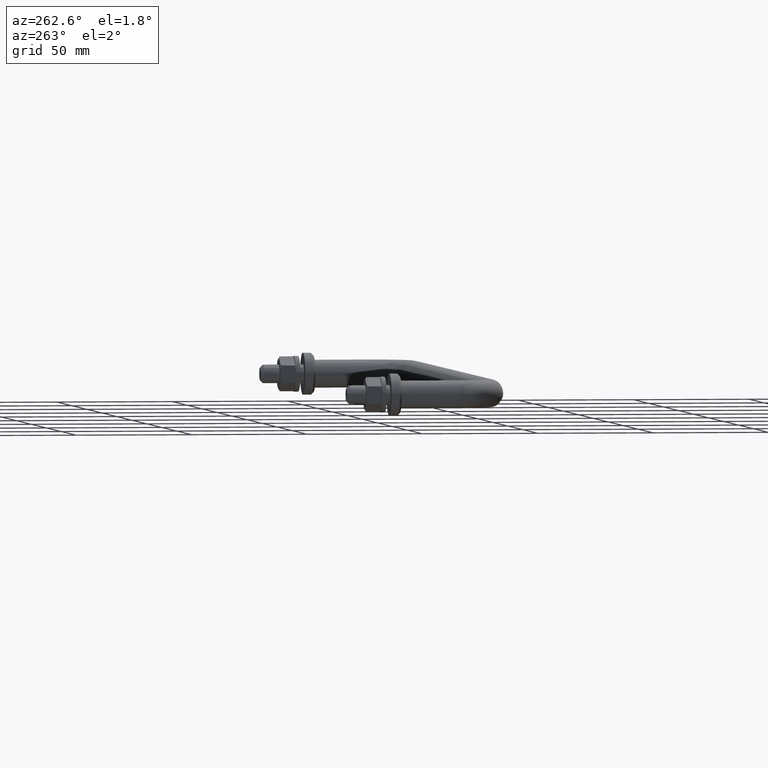
[diagram: clean part render]
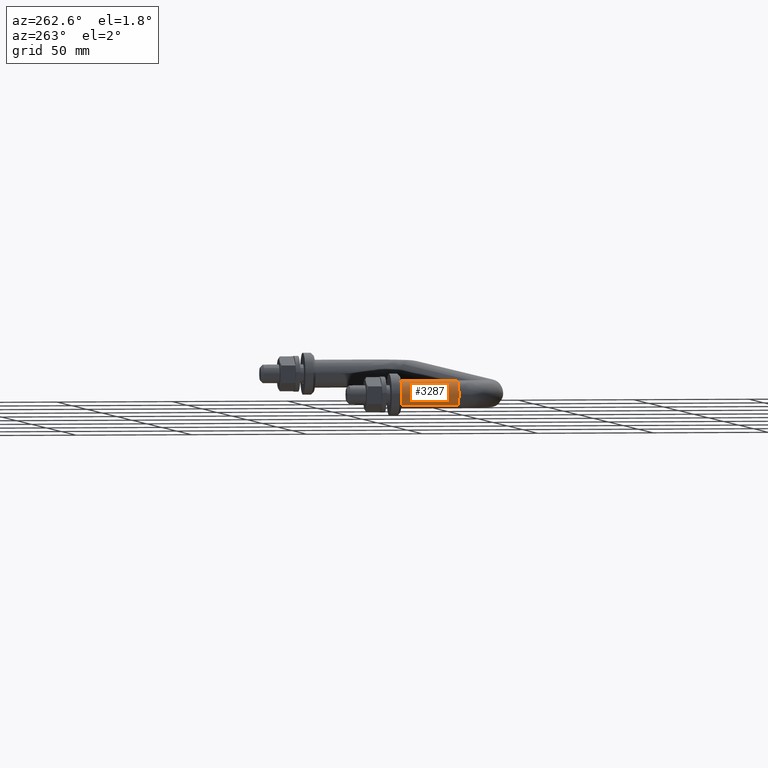
[diagram: same view with one face highlighted and labeled with its STEP entity id]
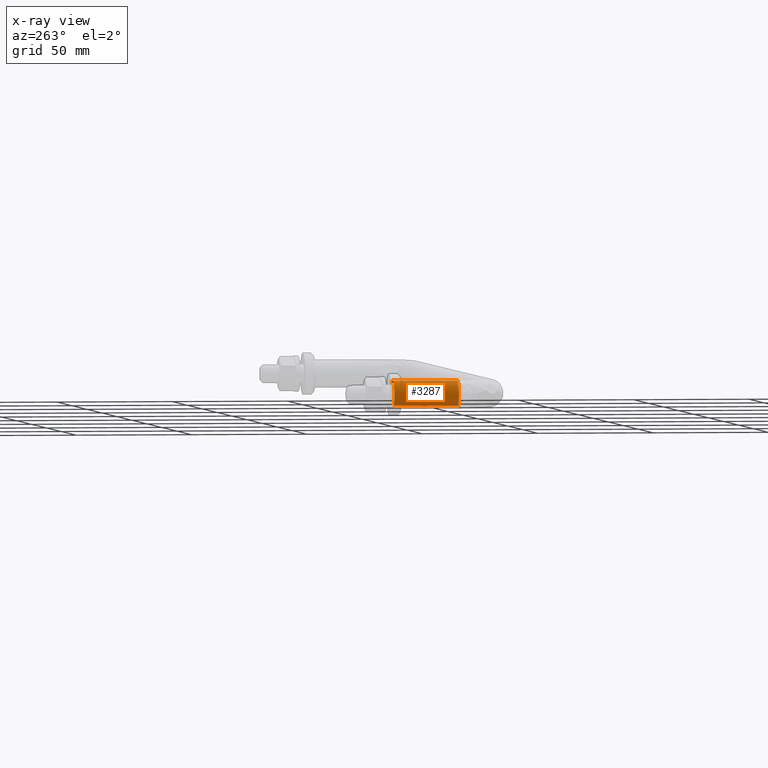
[diagram: x-ray of the same camera — body ghosted, the highlighted face saturated]
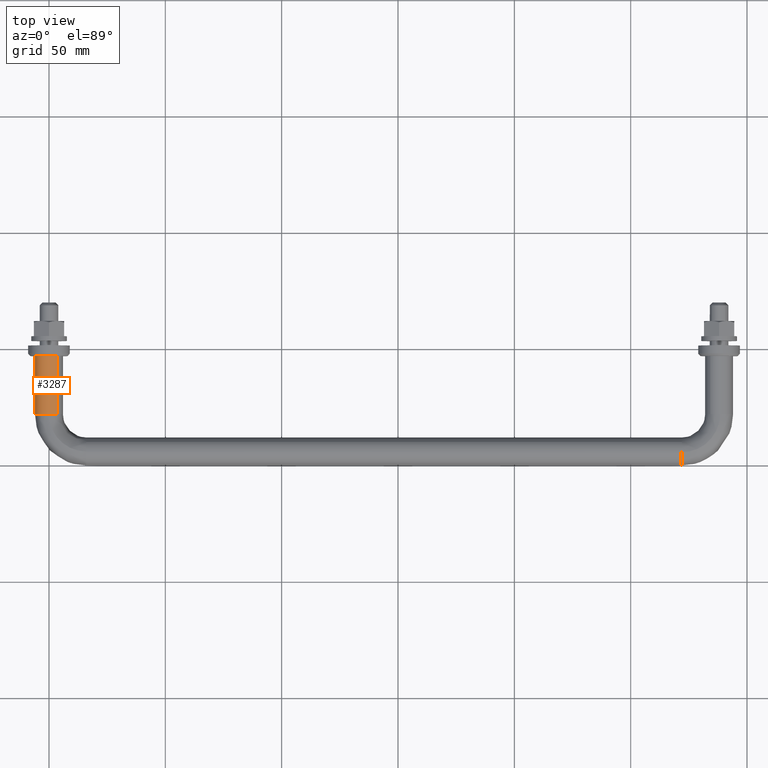
[diagram: same view with one face highlighted and labeled with its STEP entity id]
A machine part, auxiliary view. The second image highlights one B-rep face of the part: STEP entity #3287.
The next image is the same camera in x-ray: the body ghosted, the highlighted face saturated — about 0% of this face is hidden behind the body in this view.
A second angle (top view) of the same face is appended — the face is thin or edge-on in the first view.
In plain terms, the highlighted face is a freeform B-spline surface patch.
Its self-contained STEP definition (entity closure, byte-faithful):
#3174=CARTESIAN_POINT('',(3.735087819825715,0.700000000167416,4.695648941114483));
#3175=CARTESIAN_POINT('',(-0.960561121288767,0.700000000167416,8.430736760940198));
#3176=CARTESIAN_POINT('',(-4.695648941114483,0.700000000167415,3.735087819825715));
#3177=CARTESIAN_POINT('',(-8.430736760940198,0.700000000167415,-0.960561121288767));
#3178=CARTESIAN_POINT('',(-3.735087819825715,0.700000000167415,-4.695648941114483));
#3179=CARTESIAN_POINT('',(3.735087819825719,-28.717500006868171,4.695648941114483));
#3180=CARTESIAN_POINT('',(-0.960561121288764,-28.717500006868171,8.430736760940198));
#3181=CARTESIAN_POINT('',(-4.695648941114479,-28.717500006868171,3.735087819825715));
#3182=CARTESIAN_POINT('',(-8.430736760940194,-28.717500006868171,-0.960561121288767));
#3183=CARTESIAN_POINT('',(-3.735087819825712,-28.717500006868171,-4.695648941114483));
#3191=(BOUNDED_SURFACE()B_SPLINE_SURFACE(2,1,((#3174,#3179),(#3175,#3180),(#3176,#3181),(#3177,#3182),(#3178,#3183)),.UNSPECIFIED.,.F.,.F.,.U.)B_SPLINE_SURFACE_WITH_KNOTS((3,2,3),(2,2),(0.0,9.941125496954278,19.882250993908560),(0.0,29.417500007035589),.UNSPECIFIED.)GEOMETRIC_REPRESENTATION_ITEM()RATIONAL_B_SPLINE_SURFACE(((1.0,1.0),(0.707106781186548,0.707106781186548),(1.0,1.0),(0.707106781186548,0.707106781186548),(1.0,1.0)))REPRESENTATION_ITEM('')SURFACE());
#3192=CARTESIAN_POINT('',(-0.075396270194108,-28.000000006696570,5.999526264834650));
#3193=VERTEX_POINT('',#3192);
#3194=CARTESIAN_POINT('',(3.735087819832734,-28.0,4.695648941108905));
#3195=VERTEX_POINT('',#3194);
#3196=CARTESIAN_POINT('',(-0.075396270194108,-28.000000006696574,5.999526264834650));
#3197=CARTESIAN_POINT('',(-0.037699638848994,-27.999999999999996,5.999999999999999));
#3198=CARTESIAN_POINT('',(3.428898E-015,-28.0,6.0));
#3199=CARTESIAN_POINT('',(2.095293800539281,-28.0,6.000000000000002));
#3200=CARTESIAN_POINT('',(3.735087819832733,-28.000000000000004,4.695648941108906));
#3208=(BOUNDED_CURVE()B_SPLINE_CURVE(2,(#3196,#3197,#3198,#3199,#3200),.UNSPECIFIED.,.F.,.U.)B_SPLINE_CURVE_WITH_KNOTS((3,2,3),(0.747784294110506,0.750000000000000,0.857863877391897),.UNSPECIFIED.)CURVE()GEOMETRIC_REPRESENTATION_ITEM()RATIONAL_B_SPLINE_CURVE((0.994854291475282,0.997404139080329,1.0,0.873629607027951,0.856305618643925))REPRESENTATION_ITEM(''));
#3209=EDGE_CURVE('',#3193,#3195,#3208,.T.);
#3210=ORIENTED_EDGE('',*,*,#3209,.T.);
#3211=CARTESIAN_POINT('',(3.735087819829584,0.0,4.695648941111407));
#3212=VERTEX_POINT('',#3211);
#3213=CARTESIAN_POINT('',(3.735087819829584,0.0,4.695648941111407));
#3214=CARTESIAN_POINT('',(3.735087819832734,-28.0,4.695648941108905));
#3215=QUASI_UNIFORM_CURVE('',1,(#3213,#3214),.UNSPECIFIED.,.F.,.U.);
#3216=EDGE_CURVE('',#3212,#3195,#3215,.T.);
#3217=ORIENTED_EDGE('',*,*,#3216,.F.);
#3218=CARTESIAN_POINT('',(-6.0,0.0,0.0));
#3219=VERTEX_POINT('',#3218);
#3220=CARTESIAN_POINT('',(-6.0,0.0,0.0));
#3221=CARTESIAN_POINT('',(-6.0,0.0,6.0));
#3222=CARTESIAN_POINT('',(0.0,0.0,6.0));
#3223=CARTESIAN_POINT('',(2.095293800534797,0.0,6.0));
#3224=CARTESIAN_POINT('',(3.735087819829584,0.0,4.695648941111407));
#3232=(BOUNDED_CURVE()B_SPLINE_CURVE(2,(#3220,#3221,#3222,#3223,#3224),.UNSPECIFIED.,.F.,.U.)B_SPLINE_CURVE_WITH_KNOTS((3,2,3),(0.500000000000000,0.750000000000000,0.857863877391695),.UNSPECIFIED.)CURVE()GEOMETRIC_REPRESENTATION_ITEM()RATIONAL_B_SPLINE_CURVE((1.0,0.707106781186548,1.0,0.873629607028187,0.856305618643990))REPRESENTATION_ITEM(''));
#3233=EDGE_CURVE('',#3219,#3212,#3232,.T.);
#3234=ORIENTED_EDGE('',*,*,#3233,.F.);
#3235=CARTESIAN_POINT('',(-3.735087819829584,1.110223E-015,-4.695648941111407));
#3236=VERTEX_POINT('',#3235);
#3237=CARTESIAN_POINT('',(-3.735087819829584,1.110223E-015,-4.695648941111408));
#3238=CARTESIAN_POINT('',(-6.000000000000001,0.0,-2.894056444899332));
#3239=CARTESIAN_POINT('',(-6.0,0.0,0.0));
#3247=(BOUNDED_CURVE()B_SPLINE_CURVE(2,(#3237,#3238,#3239),.UNSPECIFIED.,.F.,.U.)B_SPLINE_CURVE_WITH_KNOTS((3,3),(0.357863877391695,0.500000000000000),.UNSPECIFIED.)CURVE()GEOMETRIC_REPRESENTATION_ITEM()RATIONAL_B_SPLINE_CURVE((0.856305618643990,0.833477174158360,1.0))REPRESENTATION_ITEM(''));
#3248=EDGE_CURVE('',#3236,#3219,#3247,.T.);
#3249=ORIENTED_EDGE('',*,*,#3248,.F.);
#3250=CARTESIAN_POINT('',(-3.735087819832726,-28.0,-4.695648941108905));
#3251=VERTEX_POINT('',#3250);
#3252=CARTESIAN_POINT('',(-3.735087819829584,1.110223E-015,-4.695648941111407));
#3253=CARTESIAN_POINT('',(-3.735087819832726,-28.0,-4.695648941108905));
#3254=QUASI_UNIFORM_CURVE('',1,(#3252,#3253),.UNSPECIFIED.,.F.,.U.);
#3255=EDGE_CURVE('',#3236,#3251,#3254,.T.);
#3256=ORIENTED_EDGE('',*,*,#3255,.T.);
#3257=CARTESIAN_POINT('',(-5.999999999999996,-28.0,0.0));
#3258=VERTEX_POINT('',#3257);
#3259=CARTESIAN_POINT('',(-3.735087819832726,-28.0,-4.695648941108905));
#3260=CARTESIAN_POINT('',(-5.999999999999997,-28.0,-2.894056444894377));
#3261=CARTESIAN_POINT('',(-5.999999999999996,-28.0,0.0));
#3269=(BOUNDED_CURVE()B_SPLINE_CURVE(2,(#3259,#3260,#3261),.UNSPECIFIED.,.F.,.U.)B_SPLINE_CURVE_WITH_KNOTS((3,3),(0.357863877391898,0.500000000000000),.UNSPECIFIED.)CURVE()GEOMETRIC_REPRESENTATION_ITEM()RATIONAL_B_SPLINE_CURVE((0.856305618643925,0.833477174158597,1.0))REPRESENTATION_ITEM(''));
#3270=EDGE_CURVE('',#3251,#3258,#3269,.T.);
#3271=ORIENTED_EDGE('',*,*,#3270,.T.);
#3272=CARTESIAN_POINT('',(-5.999999999999996,-28.0,0.0));
#3273=CARTESIAN_POINT('',(-5.999999999999996,-28.0,5.925071518417884));
#3274=CARTESIAN_POINT('',(-0.075396270194108,-28.000000006696574,5.999526264834650));
#3282=(BOUNDED_CURVE()B_SPLINE_CURVE(2,(#3272,#3273,#3274),.UNSPECIFIED.,.F.,.U.)B_SPLINE_CURVE_WITH_KNOTS((3,3),(0.500000000000000,0.747784294110507),.UNSPECIFIED.)CURVE()GEOMETRIC_REPRESENTATION_ITEM()RATIONAL_B_SPLINE_CURVE((1.0,0.709702642106218,0.994854291475283))REPRESENTATION_ITEM(''));
#3283=EDGE_CURVE('',#3258,#3193,#3282,.T.);
#3284=ORIENTED_EDGE('',*,*,#3283,.T.);
#3285=EDGE_LOOP('',(#3210,#3217,#3234,#3249,#3256,#3271,#3284));
#3286=FACE_OUTER_BOUND('',#3285,.T.);
#3287=ADVANCED_FACE('',(#3286),#3191,.T.);